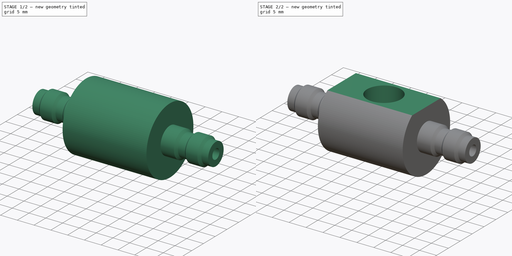
[diagram: build sequence overview — one tinted view per stage of 2, left to right]
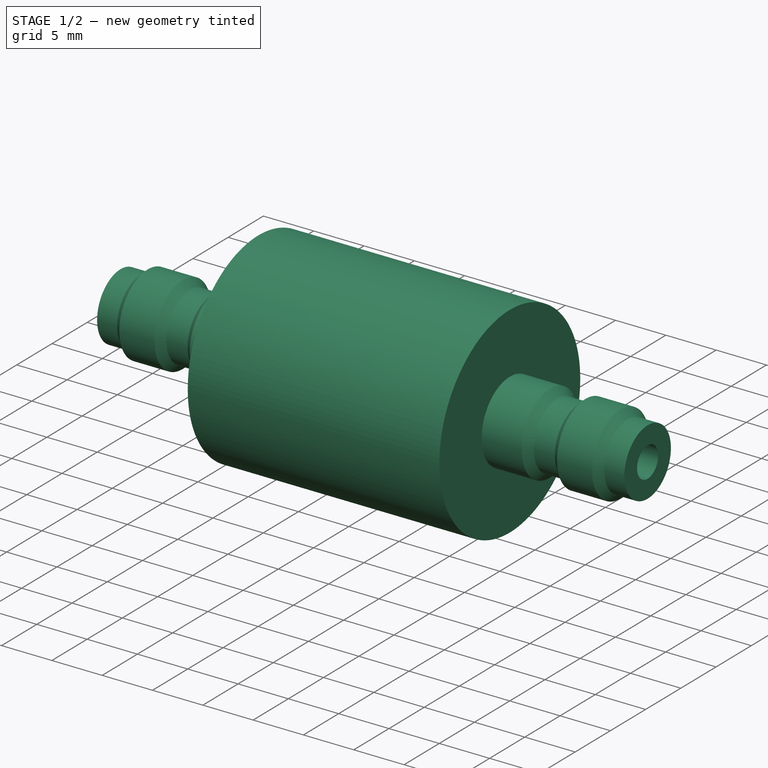
[diagram: stage 1 of 2 — iso view after this stage's code; geometry added in this stage tinted green]
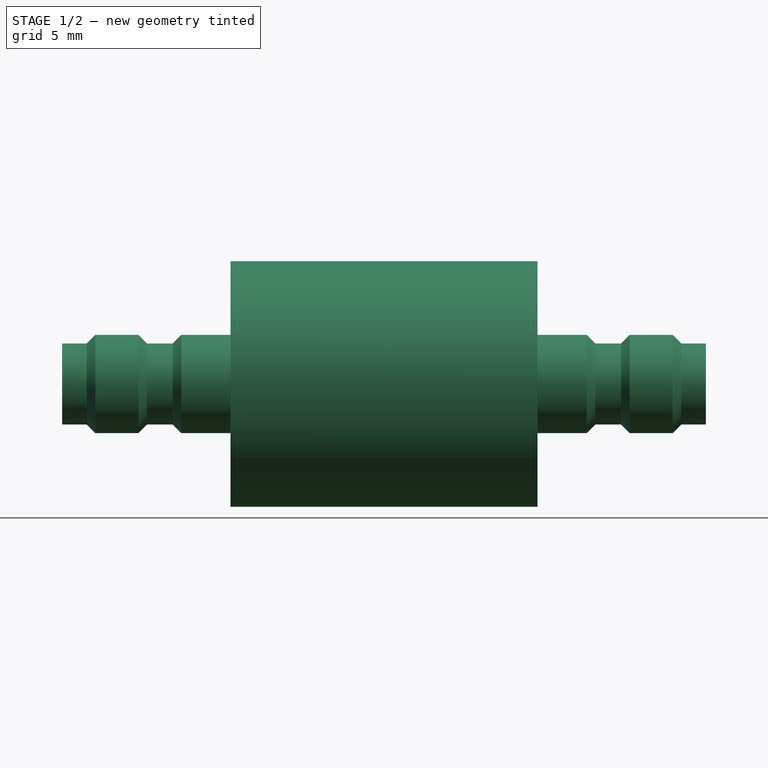
[diagram: stage 1 of 2 — front view after this stage's code; geometry added in this stage tinted green]
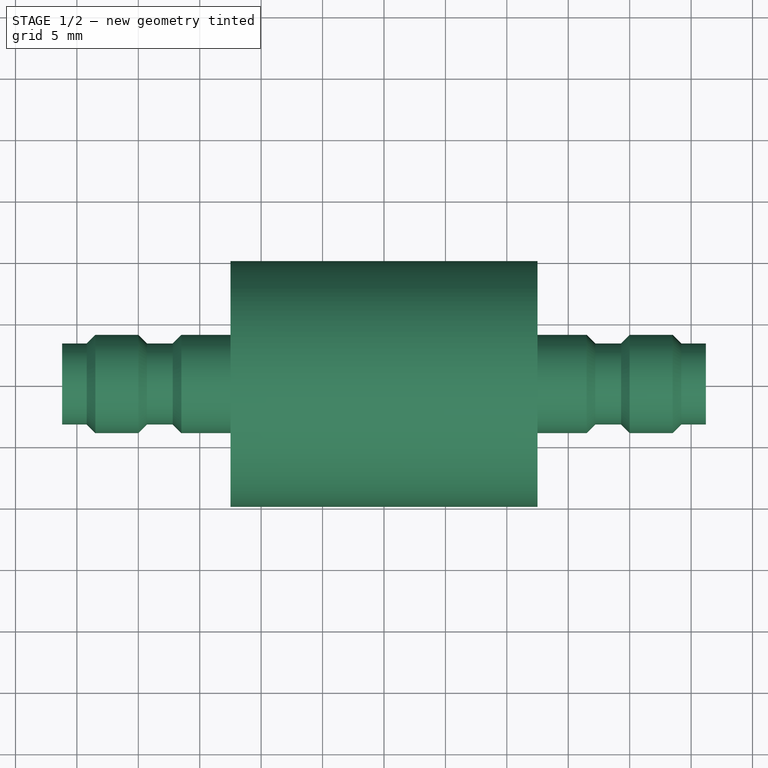
[diagram: stage 1 of 2 — top view after this stage's code; geometry added in this stage tinted green]
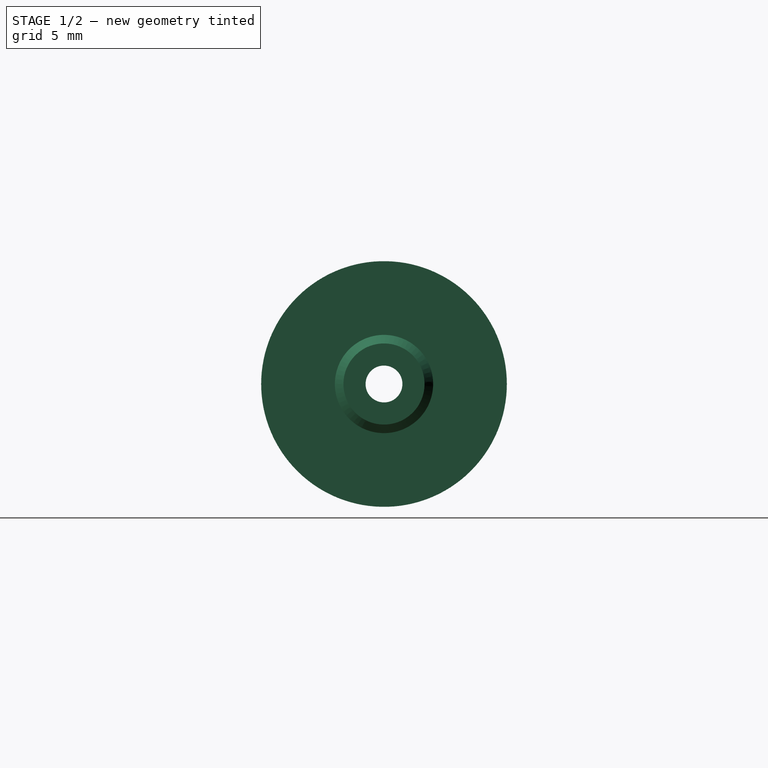
[diagram: stage 1 of 2 — right view after this stage's code; geometry added in this stage tinted green]
FCSTD DOCUMENT  (FreeCAD 0.21R33694 (Git))
Label: hp_valve_base
License: All rights reserved
LicenseURL: http://en.wikipedia.org/wiki/All_rights_reserved
objects: Sketcher::SketchObject×4, PartDesign::Pocket×3, PartDesign::Revolution×1, PartDesign::Body×1
note: 13 computed .brp shape members not serialized (recipe doc carries the construction recipe); baked Part::Feature solids carry a one-line shape summary decoded from their .brp

FEATURE [Sketcher::SketchObject] Sketch
  FullyConstrained = true
  MapMode = 5
  Support = -> [XY_Plane]
  sketch-geometry (20):
    g0: LineSegment StartX=-26.2 StartY=-3.3 StartZ=0 EndX=-24.2 EndY=-3.3 EndZ=0
    g1: LineSegment StartX=-24.2 StartY=-3.3 StartZ=0 EndX=-23.5 EndY=-4 EndZ=0
    g2: LineSegment StartX=-23.5 StartY=-4 StartZ=0 EndX=-20 EndY=-4 EndZ=0
    g3: LineSegment StartX=-20 StartY=-4 StartZ=0 EndX=-19.3 EndY=-3.3 EndZ=0
    g4: LineSegment StartX=-19.3 StartY=-3.3 StartZ=0 EndX=-17.2 EndY=-3.3 EndZ=0
    g5: LineSegment StartX=-17.2 StartY=-3.3 StartZ=0 EndX=-16.5 EndY=-4 EndZ=0
    g6: LineSegment StartX=-16.5 StartY=-4 StartZ=0 EndX=-12.5 EndY=-4 EndZ=0
    g7: LineSegment StartX=-26.2 StartY=-3.3 StartZ=0 EndX=-26.2 EndY=0 EndZ=0
    g8: LineSegment StartX=26.2 StartY=-3.3 StartZ=0 EndX=24.2 EndY=-3.3 EndZ=0
    g9: LineSegment StartX=24.2 StartY=-3.3 StartZ=0 EndX=23.5 EndY=-4 EndZ=0
    g10: LineSegment StartX=23.5 StartY=-4 StartZ=0 EndX=20 EndY=-4 EndZ=0
    g11: LineSegment StartX=20 StartY=-4 StartZ=0 EndX=19.3 EndY=-3.3 EndZ=0
    g12: LineSegment StartX=19.3 StartY=-3.3 StartZ=0 EndX=17.2 EndY=-3.3 EndZ=0
    g13: LineSegment StartX=17.2 StartY=-3.3 StartZ=0 EndX=16.5 EndY=-4 EndZ=0
    g14: LineSegment StartX=16.5 StartY=-4 StartZ=0 EndX=12.5 EndY=-4 EndZ=0
    g15: LineSegment StartX=26.2 StartY=-3.3 StartZ=0 EndX=26.2 EndY=0 EndZ=0
    g16: LineSegment StartX=-26.2 StartY=0 StartZ=0 EndX=26.2 EndY=0 EndZ=0
    g17: LineSegment StartX=-12.5 StartY=-4 StartZ=0 EndX=-12.5 EndY=-10 EndZ=0
    g18: LineSegment StartX=-12.5 StartY=-10 StartZ=0 EndX=12.5 EndY=-10 EndZ=0
    g19: LineSegment StartX=12.5 StartY=-10 StartZ=0 EndX=12.5 EndY=-4 EndZ=0
  constraints (58):
    c: Horizontal(g0)
    c: Coincident(g1,g0)
    c: Angle(g1,g-1) = 0.785398
    c: DistanceX(g0,g0) = 2
    c: Coincident(g2,g1)
    c: Horizontal(g2)
    c: Coincident(g3,g2)
    c: Angle(g3,g-1) = 2.35619
    c: DistanceX(g2,g2) = 3.5
    c: Coincident(g4,g3)
    c: Horizontal(g4)
    c: Coincident(g5,g4)
    c: Angle(g5,g-1) = 0.785398
    c: Coincident(g6,g5)
    c: Horizontal(g6)
    c: Coincident(g7,g0)
    c: PointOnObject(g7,g-1)
    c: Vertical(g7)
    c: DistanceY(g6,g-1) = 4
    c: DistanceY(g2,g7) = 4
    c: DistanceY(g7,g7) = 3.3
    c: Equal(g1,g3)
    c: DistanceX(g4,g4) = 2.1
    c: Horizontal(g8)
    c: Coincident(g9,g8)
    c: Coincident(g10,g9)
    c: Horizontal(g10)
    c: Coincident(g11,g10)
    c: Coincident(g12,g11)
    c: Horizontal(g12)
    c: Coincident(g13,g12)
    c: Coincident(g14,g13)
    c: Horizontal(g14)
    c: Coincident(g15,g8)
    c: Vertical(g15)
    c: Coincident(g16,g7)
    c: Coincident(g16,g15)
    c: Equal(g13,g5)
    c: Equal(g5,g11)
    c: Equal(g15,g7)
    c: Angle(g-1,g13) = 0.785398
    c: Angle(g-1,g11) = 2.35619
    c: Equal(g4,g12)
    c: Equal(g10,g2)
    c: Angle(g-1,g9) = 0.785398
    c: Equal(g8,g0)
    c: Symmetric(g15,g7,g-2)
    c: Symmetric(g14,g6,g-2)
    c: Coincident(g17,g6)
    c: Vertical(g17)
    c: Coincident(g18,g17)
    c: Horizontal(g18)
    c: Coincident(g19,g18)
    c: Coincident(g19,g14)
    c: Vertical(g19)
    c: DistanceY(g17,g-1) = 10
    c: DistanceX(g6,g6) = 4
    c: DistanceX(g18,g18) = 25
FEATURE [PartDesign::Revolution] Revolution
  Angle = 360
  Axis = (1,0,0)
  Base = (0,0,0)
  Profile = -> Sketch
  ReferenceAxis = -> X_Axis
  Reversed = true
FEATURE [Sketcher::SketchObject] Sketch001
  FullyConstrained = true
  MapMode = 5
  Placement = pos=(26.2,0,0) rot=(0.57735,0.57735,0.57735;2.0944rad)
  Support = -> [Revolution]
  sketch-geometry (1):
    g0: Circle CenterX=0 CenterY=0 CenterZ=0 NormalX=0 NormalY=0 NormalZ=1 AngleXU=0 Radius=1.5
  constraints (2):
    c: Coincident(g0,g-1)
    c: Diameter(g0) = 3
FEATURE [PartDesign::Pocket] Pocket
  BaseFeature = -> Revolution
  Direction = (-1,0,0)
  Length = 5
  Length2 = 5
  Profile = -> Sketch001
  ReferenceAxis = -> Sketch001 [N_Axis]
  Type = 1
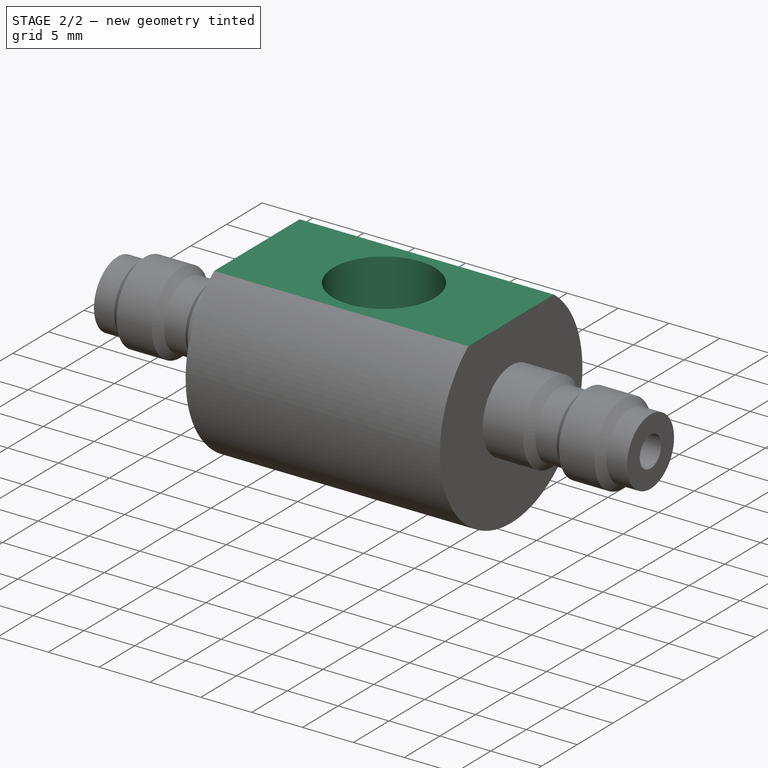
[diagram: stage 2 of 2 — iso view after this stage's code; geometry added in this stage tinted green]
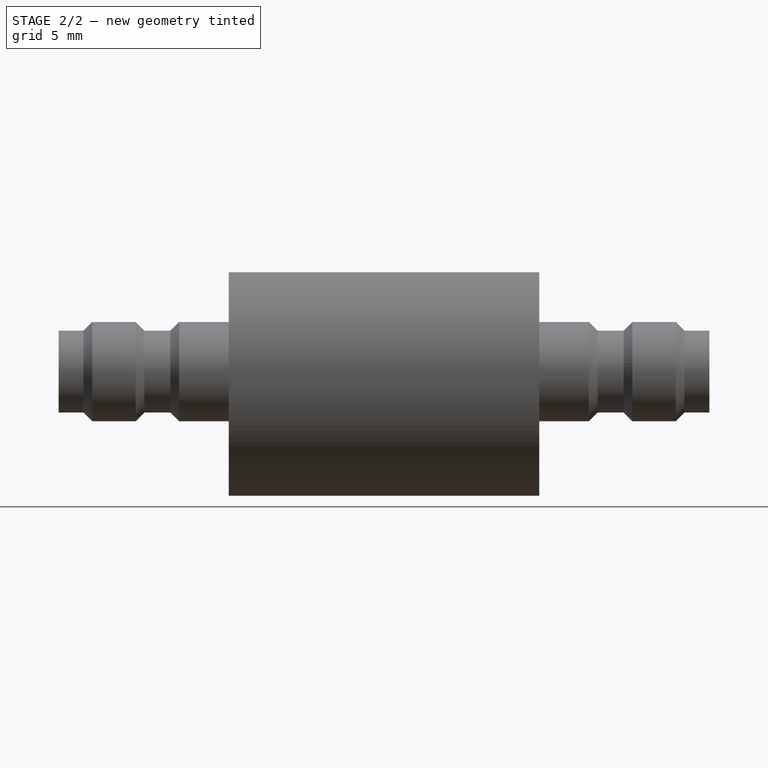
[diagram: stage 2 of 2 — front view after this stage's code; geometry added in this stage tinted green]
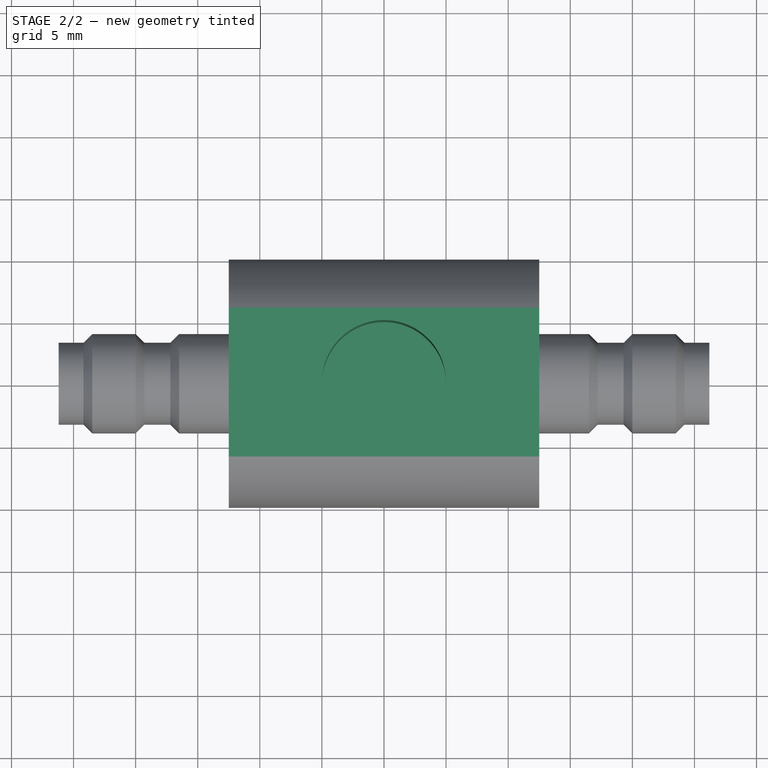
[diagram: stage 2 of 2 — top view after this stage's code; geometry added in this stage tinted green]
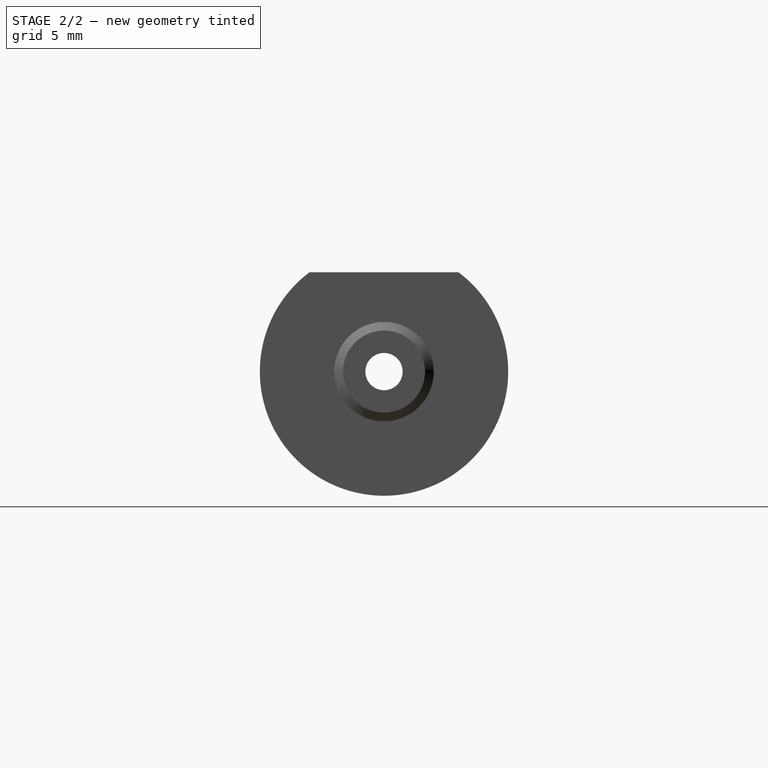
[diagram: stage 2 of 2 — right view after this stage's code; geometry added in this stage tinted green]
FEATURE [Sketcher::SketchObject] Sketch002
  ExternalGeometry = -> [Pocket]
  FullyConstrained = true
  MapMode = 5
  Placement = pos=(12.5,0,0) rot=(0.57735,0.57735,0.57735;2.0944rad)
  Support = -> [Pocket]
  sketch-geometry (2):
    g0: ArcOfCircle CenterX=0 CenterY=0 CenterZ=0 NormalX=0 NormalY=0 NormalZ=1 AngleXU=0 Radius=10 StartAngle=0.927295 EndAngle=2.2143
    g1: LineSegment StartX=-6 StartY=8 StartZ=0 EndX=6 EndY=8 EndZ=0
  constraints (6):
    c: Coincident(g0,g-3)
    c: PointOnObject(g0,g-3)
    c: Coincident(g1,g0)
    c: Coincident(g1,g0)
    c: Horizontal(g1)
    c: DistanceX(g1,g1) = 12
FEATURE [PartDesign::Pocket] Pocket001
  BaseFeature = -> Pocket
  Direction = (-1,0,0)
  Length = 5
  Length2 = 5
  Profile = -> Sketch002
  ReferenceAxis = -> Sketch002 [N_Axis]
  Type = 1
FEATURE [Sketcher::SketchObject] Sketch003
  FullyConstrained = true
  MapMode = 5
  Placement = pos=(0,0,8) rot=(0,0,1;0rad)
  Support = -> [Pocket001]
  sketch-geometry (1):
    g0: Circle CenterX=0 CenterY=0 CenterZ=0 NormalX=0 NormalY=0 NormalZ=1 AngleXU=0 Radius=5
  constraints (2):
    c: Coincident(g0,g-1)
    c: Diameter(g0) = 10
FEATURE [PartDesign::Pocket] Pocket002
  BaseFeature = -> Pocket001
  Direction = (0,0,-1)
  Length = 10
  Length2 = 5
  Profile = -> Sketch003
  ReferenceAxis = -> Sketch003 [N_Axis]
  Type = 0
FEATURE [PartDesign::Body] Body
  Group = -> [Sketch,Revolution,Sketch001,Pocket,Sketch002,Pocket001,Sketch003,Pocket002]
  Origin = -> Origin
  Tip = -> Pocket002
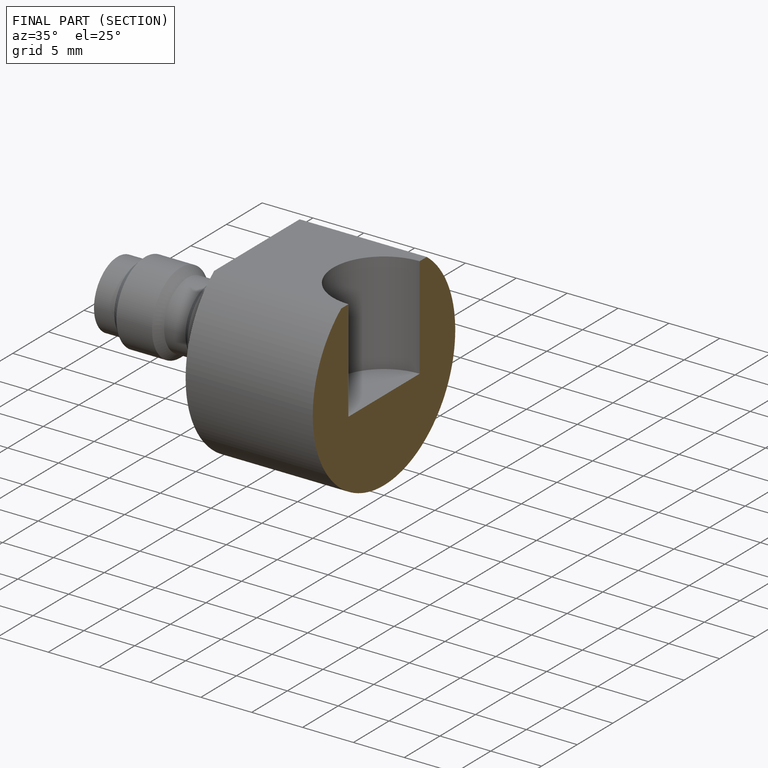
[diagram: finished part — half-section view (interior)]
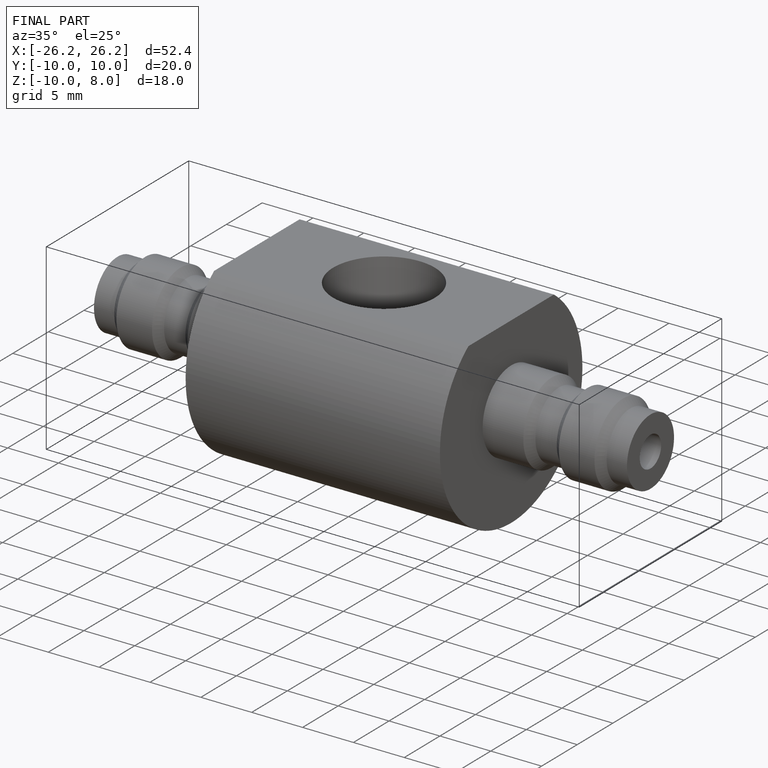
[diagram: finished part — iso view with bounding-box wireframe]
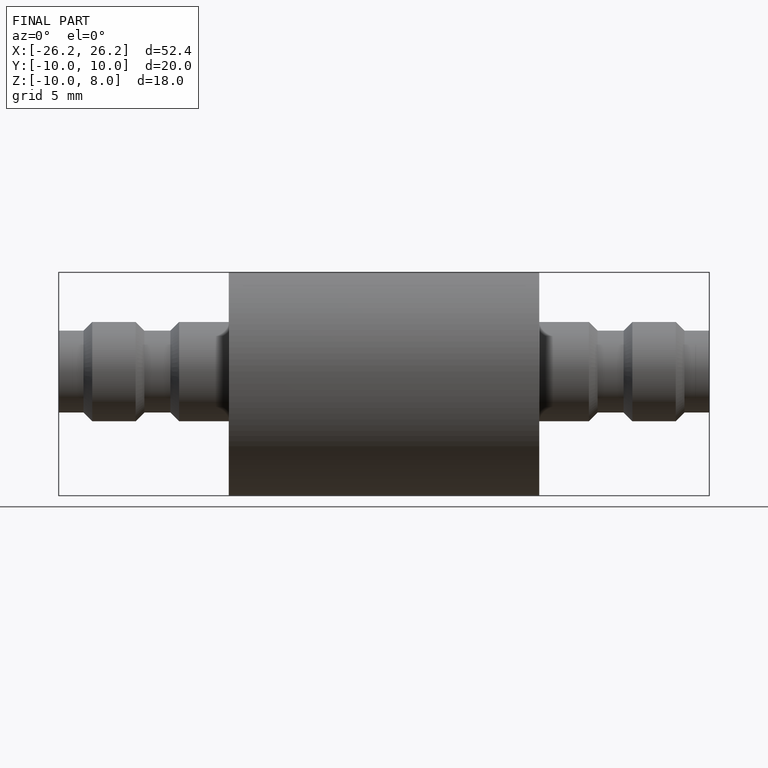
[diagram: finished part — front view with bounding-box wireframe]
